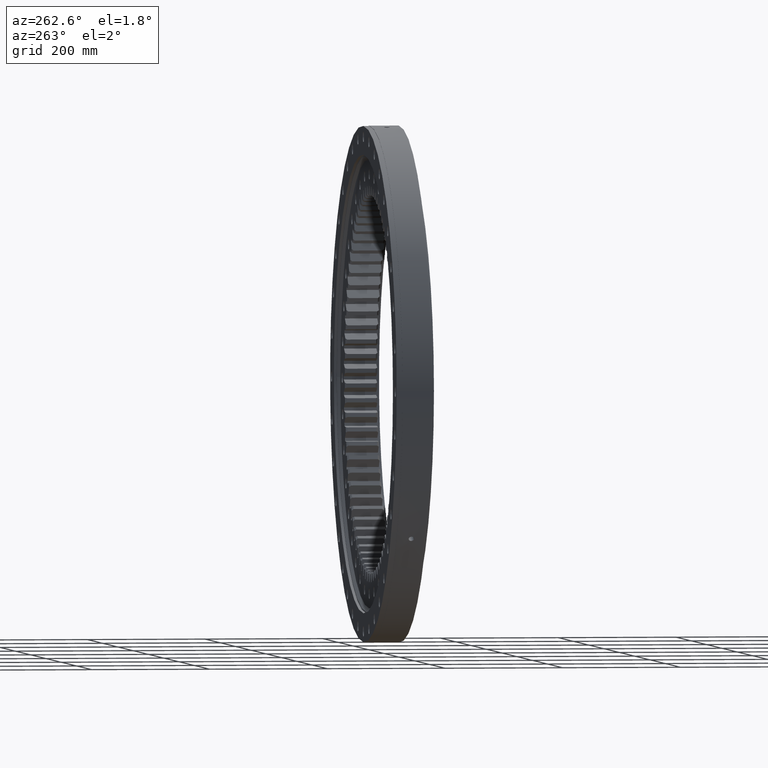
[diagram: clean part render]
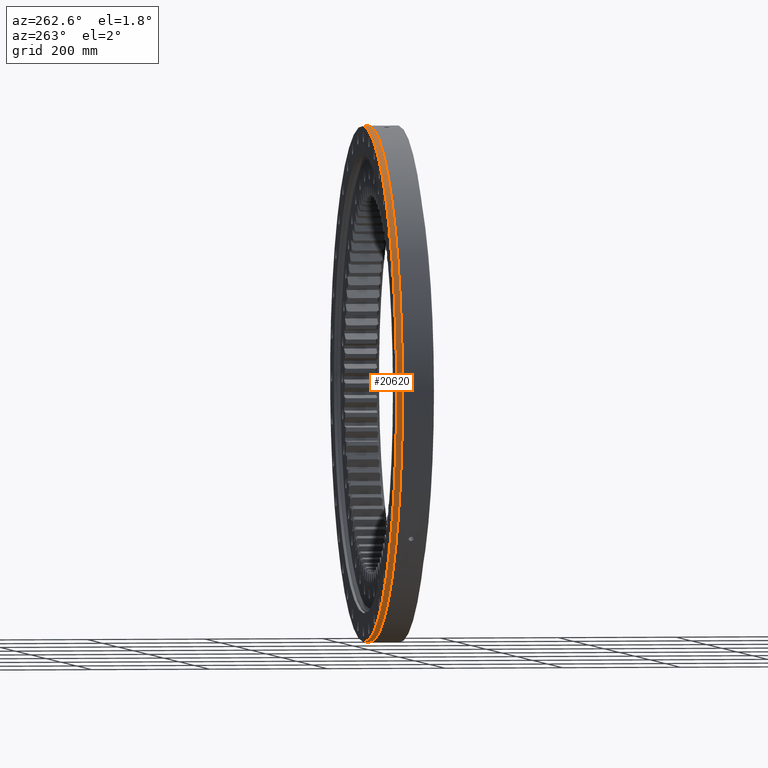
[diagram: same view with one face highlighted and labeled with its STEP entity id]
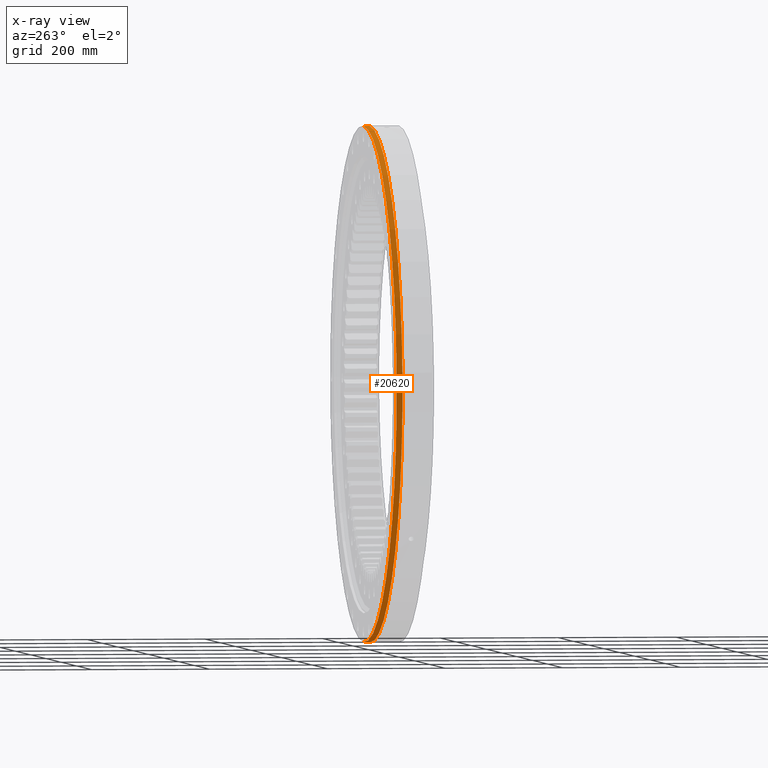
[diagram: x-ray of the same camera — body ghosted, the highlighted face saturated]
A machine part, auxiliary view. The second image highlights one B-rep face of the part: STEP entity #20620.
The next image is the same camera in x-ray: the body ghosted, the highlighted face saturated — about 0% of this face is hidden behind the body in this view.
In plain terms, the highlighted cylindrical surface (partial cylindrical patch) has radius 435 mm, axis along (0, -1, -0).
Its self-contained STEP definition (entity closure, byte-faithful):
#990 = VECTOR ( 'NONE', #11810, 1000.000000000000000 ) ;
#1039 = LINE ( 'NONE', #5328, #990 ) ;
#1180 = DIRECTION ( 'NONE',  ( 1.173697223544192200E-016, -1.000000000000000000, -8.822830751849692900E-017 ) ) ;
#1715 = EDGE_CURVE ( 'NONE', #7919, #18016, #13206, .T. ) ;
#2241 = CARTESIAN_POINT ( 'NONE',  ( -8.094057821913963100E-014, 35.00000000000007100, -435.0000000000000600 ) ) ;
#2362 = ORIENTED_EDGE ( 'NONE', *, *, #1715, .F. ) ;
#2839 = CARTESIAN_POINT ( 'NONE',  ( -4.107940282404680200E-015, 35.00000000000005700, -1.683012835122247600E-016 ) ) ;
#2844 = DIRECTION ( 'NONE',  ( -1.173697223544192200E-016, 1.000000000000000000, 3.494217355385783800E-017 ) ) ;
#2864 = DIRECTION ( 'NONE',  ( 5.551115123125782700E-017, -3.190296047773438100E-017, 1.000000000000000000 ) ) ;
#5328 = CARTESIAN_POINT ( 'NONE',  ( 3.131976253674740800E-014, -61.10955710955713700, 435.0000000000000600 ) ) ;
#5555 = VERTEX_POINT ( 'NONE', #9946 ) ;
#6867 = AXIS2_PLACEMENT_3D ( 'NONE', #23225, #15510, #18064 ) ;
#7011 = VERTEX_POINT ( 'NONE', #11407 ) ;
#7919 = VERTEX_POINT ( 'NONE', #2241 ) ;
#8407 = ORIENTED_EDGE ( 'NONE', *, *, #24022, .F. ) ;
#8858 = CARTESIAN_POINT ( 'NONE',  ( 2.003941050319247700E-014, 35.00000000000004300, 435.0000000000000600 ) ) ;
#9713 = ORIENTED_EDGE ( 'NONE', *, *, #24453, .T. ) ;
#9946 = CARTESIAN_POINT ( 'NONE',  ( -8.094057821913963100E-014, 25.00000000000011700, -435.0000000000000600 ) ) ;
#10315 = CIRCLE ( 'NONE', #12648, 435.0000000000000600 ) ;
#11262 = CYLINDRICAL_SURFACE ( 'NONE', #6867, 435.0000000000000600 ) ;
#11407 = CARTESIAN_POINT ( 'NONE',  ( 2.121310772673667400E-014, 25.00000000000003900, 435.0000000000000600 ) ) ;
#11810 = DIRECTION ( 'NONE',  ( 1.173697223544192200E-016, -1.000000000000000000, -8.822830751849692900E-017 ) ) ;
#11926 = FACE_OUTER_BOUND ( 'NONE', #19897, .T. ) ;
#12648 = AXIS2_PLACEMENT_3D ( 'NONE', #24005, #24091, #21251 ) ;
#12692 = AXIS2_PLACEMENT_3D ( 'NONE', #2839, #2844, #2864 ) ;
#13206 = CIRCLE ( 'NONE', #12692, 435.0000000000000600 ) ;
#14612 = CARTESIAN_POINT ( 'NONE',  ( -7.024707479735679900E-014, -61.10955710955705200, -435.0000000000000600 ) ) ;
#14986 = ORIENTED_EDGE ( 'NONE', *, *, #23387, .F. ) ;
#15510 = DIRECTION ( 'NONE',  ( 1.173697223544192200E-016, -1.000000000000000000, -8.822830751849692900E-017 ) ) ;
#18016 = VERTEX_POINT ( 'NONE', #8858 ) ;
#18064 = DIRECTION ( 'NONE',  ( 5.551115123125783900E-017, -9.570888143320313200E-017, 1.000000000000000000 ) ) ;
#19897 = EDGE_LOOP ( 'NONE', ( #2362, #9713, #8407, #14986 ) ) ;
#20620 = ADVANCED_FACE ( 'NONE', ( #11926 ), #11262, .T. ) ;
#21251 = DIRECTION ( 'NONE',  ( 5.551115123125783900E-017, -8.773314131376954300E-017, 1.000000000000000000 ) ) ;
#23154 = VECTOR ( 'NONE', #1180, 1000.000000000000000 ) ;
#23225 = CARTESIAN_POINT ( 'NONE',  ( 7.172411751150241800E-015, -61.10955710955709500, -8.647884843640776400E-015 ) ) ;
#23387 = EDGE_CURVE ( 'NONE', #18016, #7011, #1039, .T. ) ;
#23781 = LINE ( 'NONE', #14612, #23154 ) ;
#24005 = CARTESIAN_POINT ( 'NONE',  ( -2.934243058860489600E-015, 25.00000000000007800, -1.050584358697192700E-015 ) ) ;
#24022 = EDGE_CURVE ( 'NONE', #7011, #5555, #10315, .T. ) ;
#24091 = DIRECTION ( 'NONE',  ( 1.173697223544192200E-016, -1.000000000000000000, -8.822830751849692900E-017 ) ) ;
#24453 = EDGE_CURVE ( 'NONE', #7919, #5555, #23781, .T. ) ;